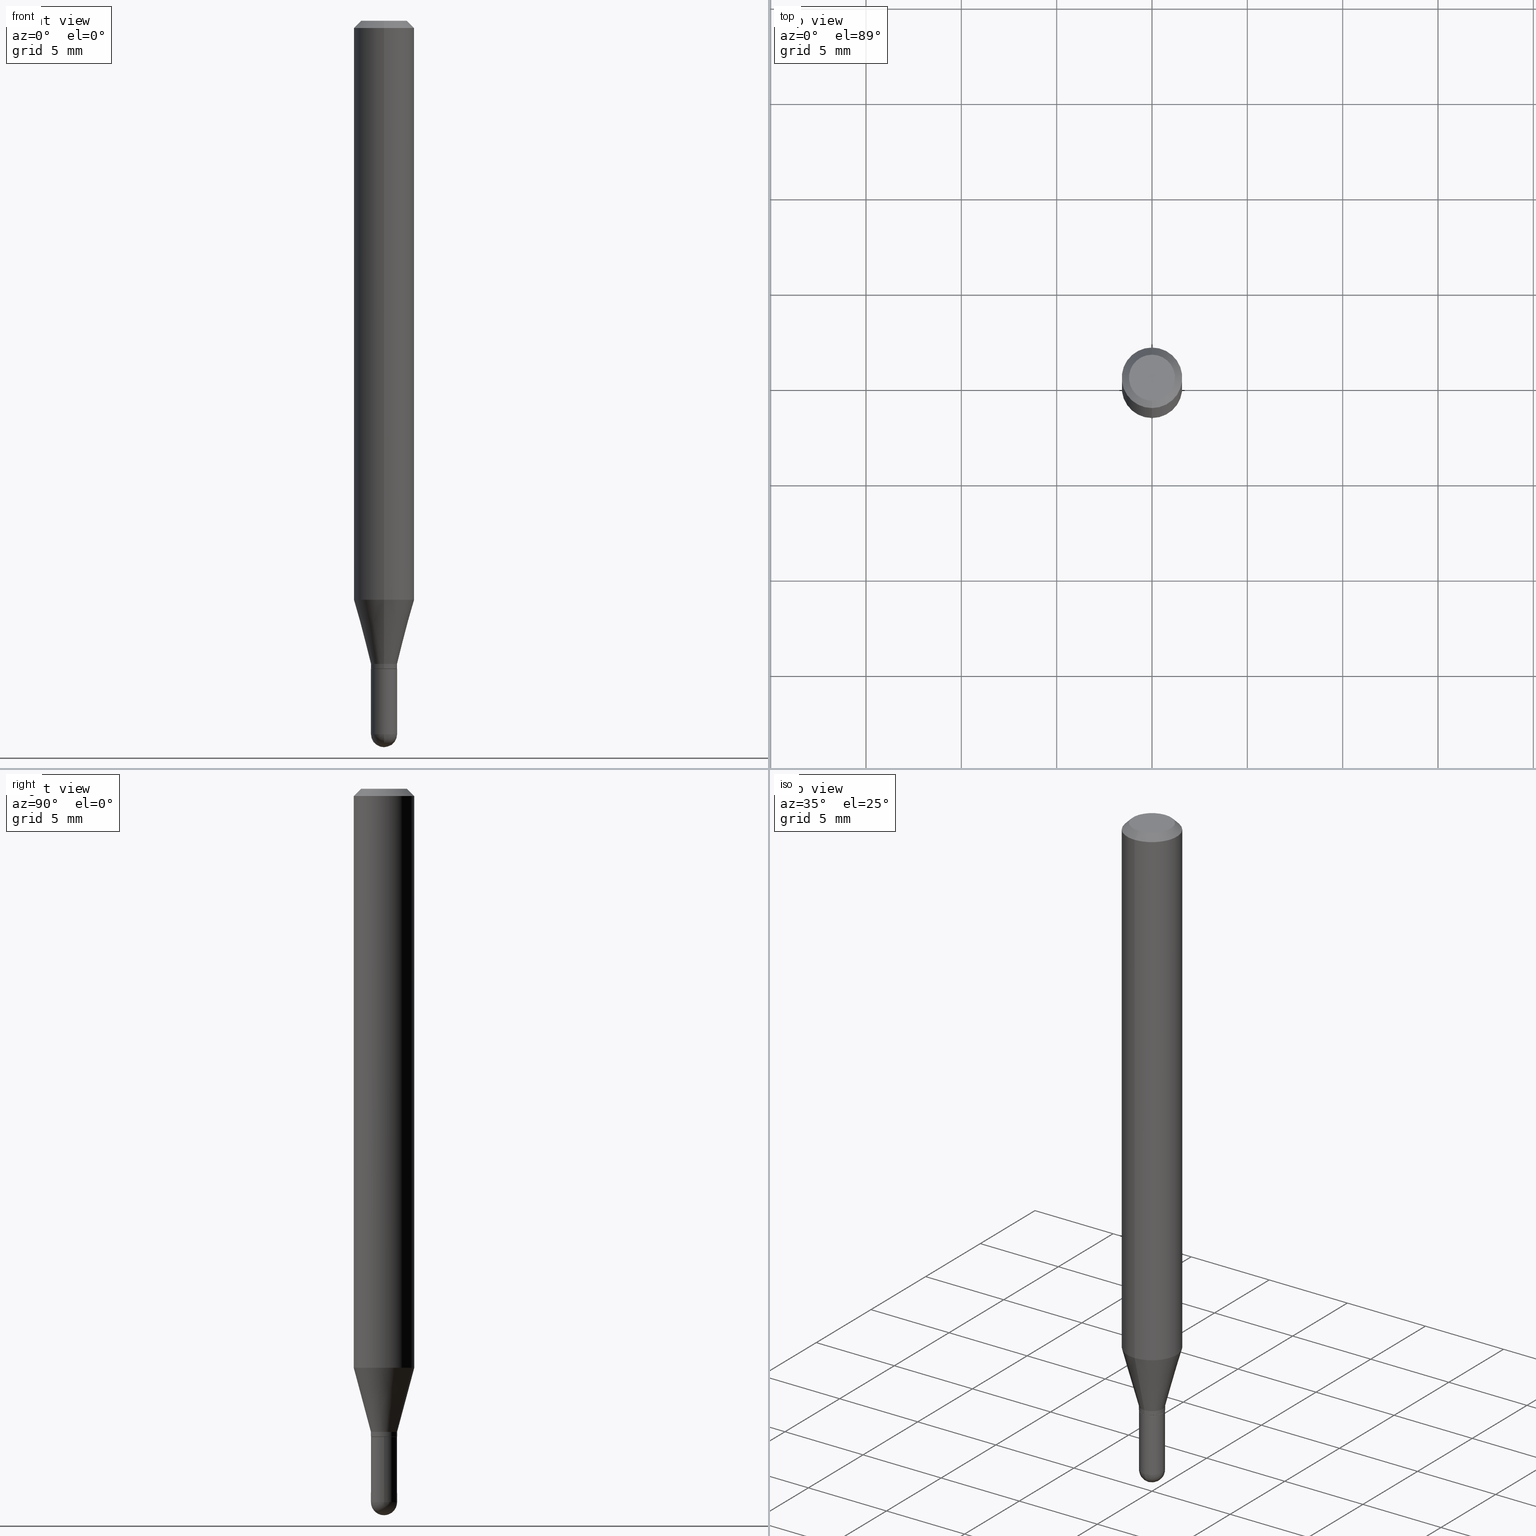
[diagram: canonical four-view strip — front | top / right | iso, engineering-drawing reading convention]
A machine part, canonical four-view strip (front | top / right | iso — engineering-drawing reading convention). The complete STEP part file that produces these views, byte-faithful:
ISO-10303-21;
HEADER;
FILE_DESCRIPTION (( 'STEP AP203' ),
    '1' );
FILE_NAME ('00931.STEP',
    '2024-03-07T18:59:54',
    ( '' ),
    ( '' ),
    'SwSTEP 2.0',
    'SolidWorks 2023',
    '' );
FILE_SCHEMA (( 'CONFIG_CONTROL_DESIGN' ));
ENDSEC;

DATA;
#1 = ORIENTED_EDGE ( 'NONE', *, *, #105, .F. ) ;
#2 = EDGE_CURVE ( 'NONE', #106, #34, #147, .T. ) ;
#3 = DIRECTION ( 'NONE',  ( -7.105427357601000281E-15, -1.000000000000000000, 0.000000000000000000 ) ) ;
#4 = CARTESIAN_POINT ( 'NONE',  ( 3.272025347313911771E-29, -4.671619094848407889E-15, -1.338000000000000078 ) ) ;
#5 = PLANE ( 'NONE',  #325 ) ;
#6 = VECTOR ( 'NONE', #388, 39.37007874015748143 ) ;
#7 = APPROVAL_PERSON_ORGANIZATION ( #179, #91, #22 ) ;
#8 = EDGE_LOOP ( 'NONE', ( #339, #29, #226, #201, #393 ) ) ;
#9 = EDGE_LOOP ( 'NONE', ( #151, #293 ) ) ;
#10 = DIRECTION ( 'NONE',  ( 1.000000000000000000, -6.982962677686261189E-15, 0.000000000000000000 ) ) ;
#11 = ORIENTED_EDGE ( 'NONE', *, *, #265, .F. ) ;
#12 = PRODUCT ( '00931', '00931', '', ( #220 ) ) ;
#13 = VECTOR ( 'NONE', #476, 39.37007874015748143 ) ;
#14 = AXIS2_PLACEMENT_3D ( 'NONE', #263, #421, #67 ) ;
#15 = LINE ( 'NONE', #443, #508 ) ;
#16 = CYLINDRICAL_SURFACE ( 'NONE', #197, 0.02700000000000000316 ) ;
#17 = CIRCLE ( 'NONE', #281, 0.06250000000000000000 ) ;
#18 = CIRCLE ( 'NONE', #271, 0.02649999999999999925 ) ;
#19 = LINE ( 'NONE', #255, #417 ) ;
#20 = EDGE_CURVE ( 'NONE', #231, #192, #435, .T. ) ;
#21 = CYLINDRICAL_SURFACE ( 'NONE', #342, 0.02699999999999992337 ) ;
#22 = APPROVAL_ROLE ( '' ) ;
#23 = VECTOR ( 'NONE', #219, 39.37007874015748143 ) ;
#24 = EDGE_CURVE ( 'NONE', #176, #200, #494, .T. ) ;
#25 = LOCAL_TIME ( 13, 59, 54.00000000000000000, #478 ) ;
#26 = CARTESIAN_POINT ( 'NONE',  ( 3.247570748305587129E-29, -4.636704153930258690E-15, -1.328000000000000069 ) ) ;
#27 = COORDINATED_UNIVERSAL_TIME_OFFSET ( 5, 0, .BEHIND. ) ;
#28 = CARTESIAN_POINT ( 'NONE',  ( 3.840629472727447874E-16, 0.04749999999999999362, -1.747056831868805136E-16 ) ) ;
#29 = ORIENTED_EDGE ( 'NONE', *, *, #81, .T. ) ;
#30 = DIRECTION ( 'NONE',  ( 2.445459900832520260E-29, -3.491494091814953500E-15, -1.000000000000000000 ) ) ;
#31 = EDGE_CURVE ( 'NONE', #185, #495, #222, .T. ) ;
#32 = VERTEX_POINT ( 'NONE', #506 ) ;
#33 = CARTESIAN_POINT ( 'NONE',  ( -1.885399922974961558E-16, -0.02700000000000455855, -1.328000000000000069 ) ) ;
#34 = VERTEX_POINT ( 'NONE', #190 ) ;
#35 = LINE ( 'NONE', #152, #23 ) ;
#36 = EDGE_CURVE ( 'NONE', #256, #410, #104, .T. ) ;
#37 = ORIENTED_EDGE ( 'NONE', *, *, #199, .T. ) ;
#38 = CARTESIAN_POINT ( 'NONE',  ( 3.270802617363496408E-29, -4.669873347802500627E-15, -1.337500000000000133 ) ) ;
#39 =( CONVERSION_BASED_UNIT ( 'INCH', #159 ) LENGTH_UNIT ( ) NAMED_UNIT ( #154 ) );
#40 = VERTEX_POINT ( 'NONE', #33 ) ;
#41 = DIRECTION ( 'NONE',  ( -6.982962677686265922E-15, -1.000000000000000000, 3.483106191921935554E-15 ) ) ;
#42 = DIRECTION ( 'NONE',  ( -6.982962677686265922E-15, -1.000000000000000000, 0.000000000000000000 ) ) ;
#43 = ORIENTED_EDGE ( 'NONE', *, *, #172, .F. ) ;
#44 = EDGE_CURVE ( 'NONE', #425, #231, #69, .T. ) ;
#45 = VERTEX_POINT ( 'NONE', #208 ) ;
#46 = LINE ( 'NONE', #276, #6 ) ;
#47 = EDGE_LOOP ( 'NONE', ( #223, #375, #295, #1 ) ) ;
#48 = EDGE_LOOP ( 'NONE', ( #238, #391, #99, #267 ) ) ;
#49 = DIRECTION ( 'NONE',  ( -6.982962677686265922E-15, -1.000000000000000000, 0.000000000000000000 ) ) ;
#50 = ADVANCED_FACE ( 'NONE', ( #58 ), #16, .T. ) ;
#51 = PERSON_AND_ORGANIZATION_ROLE ( 'creator' ) ;
#52 = CYLINDRICAL_SURFACE ( 'NONE', #95, 0.06250000000000000000 ) ;
#53 = AXIS2_PLACEMENT_3D ( 'NONE', #4, #456, #273 ) ;
#54 = EDGE_CURVE ( 'NONE', #40, #185, #260, .T. ) ;
#55 = LINE ( 'NONE', #207, #195 ) ;
#56 = CARTESIAN_POINT ( 'NONE',  ( 3.602175551510707068E-29, -5.142952012115954617E-15, -1.473000000000000309 ) ) ;
#57 = CARTESIAN_POINT ( 'NONE',  ( -1.850485109586532966E-16, -0.02650000000000466913, -1.338000000000000078 ) ) ;
#58 = FACE_OUTER_BOUND ( 'NONE', #8, .T. ) ;
#59 = EDGE_CURVE ( 'NONE', #34, #106, #382, .T. ) ;
#60 = CIRCLE ( 'NONE', #406, 0.02699999999999992337 ) ;
#61 = DIRECTION ( 'NONE',  ( -4.937700262164674260E-15, -0.7071067811865632269, 0.7071067811865319186 ) ) ;
#62 = ORIENTED_EDGE ( 'NONE', *, *, #472, .T. ) ;
#63 = LOCAL_TIME ( 13, 59, 54.00000000000000000, #327 ) ;
#64 = DIRECTION ( 'NONE',  ( -2.445459900832520260E-29, 3.491494091814953500E-15, 1.000000000000000000 ) ) ;
#65 = PERSON_AND_ORGANIZATION_ROLE ( 'creator' ) ;
#66 = EDGE_CURVE ( 'NONE', #425, #194, #213, .T. ) ;
#67 = DIRECTION ( 'NONE',  ( 1.000000000000000000, 0.000000000000000000, 0.000000000000000000 ) ) ;
#68 = PERSON_AND_ORGANIZATION ( #248, #245 ) ;
#69 = LINE ( 'NONE', #378, #225 ) ;
#70 = LINE ( 'NONE', #272, #209 ) ;
#71 = DIRECTION ( 'NONE',  ( -6.982962677686265922E-15, -1.000000000000000000, 0.000000000000000000 ) ) ;
#72 = APPROVAL ( #240, 'UNSPECIFIED' ) ;
#73 = ORIENTED_EDGE ( 'NONE', *, *, #234, .T. ) ;
#74 = EDGE_LOOP ( 'NONE', ( #384, #350, #275, #306, #140 ) ) ;
#75 = AXIS2_PLACEMENT_3D ( 'NONE', #250, #403, #289 ) ;
#76 = LOCAL_TIME ( 13, 59, 54.00000000000000000, #367 ) ;
#77 = CARTESIAN_POINT ( 'NONE',  ( 3.272025347313911771E-29, -4.671619094848407889E-15, -1.338000000000000078 ) ) ;
#78 = CARTESIAN_POINT ( 'NONE',  ( 3.270802617363496408E-29, -4.669873347802500627E-15, -1.337500000000000133 ) ) ;
#79 = CARTESIAN_POINT ( 'NONE',  ( 3.668189851248782579E-31, -5.237241137722432962E-17, -0.01500000000000000812 ) ) ;
#80 = CARTESIAN_POINT ( 'NONE',  ( 3.272025347313911771E-29, -4.671619094848407889E-15, -1.338000000000000078 ) ) ;
#81 = EDGE_CURVE ( 'NONE', #437, #106, #46, .T. ) ;
#82 = UNCERTAINTY_MEASURE_WITH_UNIT (LENGTH_MEASURE( 1.000000000000000082E-05 ), #39, 'distance_accuracy_value', 'NONE');
#83 = ORIENTED_EDGE ( 'NONE', *, *, #59, .T. ) ;
#84 = APPLICATION_CONTEXT ( 'configuration controlled 3d designs of mechanical parts and assemblies' ) ;
#85 = AXIS2_PLACEMENT_3D ( 'NONE', #365, #296, #299 ) ;
#86 = AXIS2_PLACEMENT_3D ( 'NONE', #210, #173, #126 ) ;
#87 = EDGE_LOOP ( 'NONE', ( #37, #454, #377, #351 ) ) ;
#88 = DESIGN_CONTEXT ( 'detailed design', #390, 'design' ) ;
#89 = LINE ( 'NONE', #446, #164 ) ;
#90 = PERSON_AND_ORGANIZATION ( #248, #245 ) ;
#91 = APPROVAL ( #505, 'UNSPECIFIED' ) ;
#92 = AXIS2_PLACEMENT_3D ( 'NONE', #337, #504, #144 ) ;
#93 = EDGE_CURVE ( 'NONE', #196, #34, #103, .T. ) ;
#94 = CYLINDRICAL_SURFACE ( 'NONE', #75, 0.02699999999999992337 ) ;
#95 = AXIS2_PLACEMENT_3D ( 'NONE', #247, #440, #286 ) ;
#96 = CONICAL_SURFACE ( 'NONE', #444, 0.02649999999999999925, 0.7853981633974739252 ) ;
#97 = ADVANCED_FACE ( 'NONE', ( #412 ), #416, .T. ) ;
#98 = DATE_AND_TIME ( #409, #121 ) ;
#99 = ORIENTED_EDGE ( 'NONE', *, *, #206, .T. ) ;
#100 = CARTESIAN_POINT ( 'NONE',  ( 3.668189851248782579E-31, -5.237241137722432962E-17, -0.01500000000000000812 ) ) ;
#101 = PERSON_AND_ORGANIZATION ( #248, #245 ) ;
#102 = CARTESIAN_POINT ( 'NONE',  ( 4.440892098500625669E-16, 0.06250000000000000000, -2.182183807384345937E-16 ) ) ;
#103 = LINE ( 'NONE', #433, #13 ) ;
#104 = CIRCLE ( 'NONE', #441, 0.04749999999999999362 ) ;
#105 = EDGE_CURVE ( 'NONE', #185, #40, #252, .T. ) ;
#106 = VERTEX_POINT ( 'NONE', #282 ) ;
#107 = CARTESIAN_POINT ( 'NONE',  ( 1.918465386552589476E-16, 0.02699999999999528819, -1.328000000000000069 ) ) ;
#108 = EDGE_CURVE ( 'NONE', #200, #437, #244, .T. ) ;
#109 = ORIENTED_EDGE ( 'NONE', *, *, #349, .T. ) ;
#110 = DIRECTION ( 'NONE',  ( -2.445459900832520260E-29, 3.491494091814953500E-15, 1.000000000000000000 ) ) ;
#111 = CARTESIAN_POINT ( 'NONE',  ( 0.000000000000000000, 0.000000000000000000, 0.000000000000000000 ) ) ;
#112 = DIRECTION ( 'NONE',  ( -2.445459900832520260E-29, 3.491494091814953500E-15, 1.000000000000000000 ) ) ;
#113 = PLANE ( 'NONE',  #392 ) ;
#114 = AXIS2_PLACEMENT_3D ( 'NONE', #80, #307, #266 ) ;
#115 = CARTESIAN_POINT ( 'NONE',  ( 3.272025347313911771E-29, -4.671619094848407889E-15, -1.338000000000000078 ) ) ;
#116 = EDGE_LOOP ( 'NONE', ( #109, #507, #499, #43 ) ) ;
#117 = DIRECTION ( 'NONE',  ( -2.445459900832520260E-29, 3.491494091814953500E-15, 1.000000000000000000 ) ) ;
#118 =( NAMED_UNIT ( * ) SI_UNIT ( $, .STERADIAN. ) SOLID_ANGLE_UNIT ( ) );
#119 = EDGE_CURVE ( 'NONE', #437, #32, #131, .T. ) ;
#120 = AXIS2_PLACEMENT_3D ( 'NONE', #321, #237, #49 ) ;
#121 = LOCAL_TIME ( 13, 59, 54.00000000000000000, #27 ) ;
#122 = ORIENTED_EDGE ( 'NONE', *, *, #160, .F. ) ;
#123 = DIRECTION ( 'NONE',  ( 1.000000000000000000, -6.982962677686259611E-15, 0.000000000000000000 ) ) ;
#124 = PERSON_AND_ORGANIZATION_ROLE ( 'design_owner' ) ;
#125 = DIRECTION ( 'NONE',  ( -2.445459900832520260E-29, 3.491494091814953500E-15, 1.000000000000000000 ) ) ;
#126 = DIRECTION ( 'NONE',  ( -6.982962677686265922E-15, -1.000000000000000000, 3.491494091814953500E-15 ) ) ;
#127 = CARTESIAN_POINT ( 'NONE',  ( 3.602175551510707068E-29, -5.142952012115954617E-15, -1.473000000000000309 ) ) ;
#128 = DIRECTION ( 'NONE',  ( -6.982962677686265922E-15, -1.000000000000000000, 0.000000000000000000 ) ) ;
#129 = DIRECTION ( 'NONE',  ( -2.445459900832520260E-29, 3.491494091814953500E-15, 1.000000000000000000 ) ) ;
#130 = CLOSED_SHELL ( 'NONE', ( #50, #334, #241, #413, #215 ) ) ;
#131 = CIRCLE ( 'NONE', #301, 0.02700000000000000316 ) ;
#132 = ADVANCED_FACE ( 'NONE', ( #203 ), #459, .T. ) ;
#133 = PRODUCT_DEFINITION_FORMATION_WITH_SPECIFIED_SOURCE ( 'ANY', '', #12, .NOT_KNOWN. ) ;
#134 = CARTESIAN_POINT ( 'NONE',  ( 3.599866602529921766E-29, -5.146258558473651564E-15, -1.473000000000000087 ) ) ;
#135 = APPROVAL_STATUS ( 'not_yet_approved' ) ;
#136 = APPROVAL_PERSON_ORGANIZATION ( #101, #438, #298 ) ;
#137 = ORIENTED_EDGE ( 'NONE', *, *, #146, .F. ) ;
#138 = DIRECTION ( 'NONE',  ( 1.000000000000000000, -6.982962677686267499E-15, 4.876176775795935232E-29 ) ) ;
#139 = ADVANCED_FACE ( 'NONE', ( #243 ), #52, .T. ) ;
#140 = ORIENTED_EDGE ( 'NONE', *, *, #2, .F. ) ;
#141 = CARTESIAN_POINT ( 'NONE',  ( 1.885399922975619024E-16, 0.02699999999999532982, -1.338000000000000078 ) ) ;
#142 = DATE_AND_TIME ( #498, #76 ) ;
#143 = ORIENTED_EDGE ( 'NONE', *, *, #44, .T. ) ;
#144 = DIRECTION ( 'NONE',  ( 6.982962677686265922E-15, 1.000000000000000000, 0.000000000000000000 ) ) ;
#145 = APPLICATION_PROTOCOL_DEFINITION ( 'international standard', 'config_control_design', 1994, #84 ) ;
#146 = EDGE_CURVE ( 'NONE', #40, #45, #89, .T. ) ;
#147 = CIRCLE ( 'NONE', #487, 0.02699999999999999969 ) ;
#148 = EDGE_LOOP ( 'NONE', ( #347, #424 ) ) ;
#149 = AXIS2_PLACEMENT_3D ( 'NONE', #100, #30, #228 ) ;
#150 = DIRECTION ( 'NONE',  ( -6.982962677686266711E-15, -1.000000000000000000, 3.491494091814954289E-15 ) ) ;
#151 = ORIENTED_EDGE ( 'NONE', *, *, #511, .F. ) ;
#152 = CARTESIAN_POINT ( 'NONE',  ( 1.918465386552264810E-16, 0.02699999999999992337, -9.427034047900348023E-17 ) ) ;
#153 = CARTESIAN_POINT ( 'NONE',  ( 3.316907271900976096E-16, 0.04749999999999999362, -1.702758262740453827E-16 ) ) ;
#154 = DIMENSIONAL_EXPONENTS ( 1.000000000000000000, 0.000000000000000000, 0.000000000000000000, 0.000000000000000000, 0.000000000000000000, 0.000000000000000000, 0.000000000000000000 ) ;
#155 = ORIENTED_EDGE ( 'NONE', *, *, #257, .F. ) ;
#156 = SPHERICAL_SURFACE ( 'NONE', #92, 0.02700000000000001357 ) ;
#157 = FACE_OUTER_BOUND ( 'NONE', #148, .T. ) ;
#158 = CIRCLE ( 'NONE', #311, 0.02700000000000001357 ) ;
#159 = LENGTH_MEASURE_WITH_UNIT ( LENGTH_MEASURE( 0.02539999999999999897 ), #229 );
#160 = EDGE_CURVE ( 'NONE', #32, #196, #448, .T. ) ;
#161 = ORIENTED_EDGE ( 'NONE', *, *, #24, .T. ) ;
#162 = EDGE_CURVE ( 'NONE', #410, #474, #55, .T. ) ;
#163 = DIRECTION ( 'NONE',  ( 1.000000000000000000, -6.982962677686259611E-15, 0.000000000000000000 ) ) ;
#164 = VECTOR ( 'NONE', #400, 39.37007874015748854 ) ;
#165 = AXIS2_PLACEMENT_3D ( 'NONE', #418, #202, #509 ) ;
#166 = DIRECTION ( 'NONE',  ( -2.445459900832520260E-29, 3.491494091814953500E-15, 1.000000000000000000 ) ) ;
#167 = EDGE_CURVE ( 'NONE', #45, #474, #361, .T. ) ;
#168 = VECTOR ( 'NONE', #264, 39.37007874015748854 ) ;
#169 = APPROVAL_PERSON_ORGANIZATION ( #90, #72, #473 ) ;
#170 = DIRECTION ( 'NONE',  ( -2.445468806185136597E-29, 3.491481338843145583E-15, 1.000000000000000000 ) ) ;
#171 = ADVANCED_BREP_SHAPE_REPRESENTATION ( '00931', ( #492, #484, #14 ), #214 ) ;
#172 = EDGE_CURVE ( 'NONE', #192, #40, #15, .T. ) ;
#173 = DIRECTION ( 'NONE',  ( -2.445459900832519979E-29, 3.491494091814953500E-15, 1.000000000000000000 ) ) ;
#174 = DATE_AND_TIME ( #288, #25 ) ;
#175 = DIRECTION ( 'NONE',  ( -2.445459900832520260E-29, 3.491494091814953500E-15, 1.000000000000000000 ) ) ;
#176 = VERTEX_POINT ( 'NONE', #317 ) ;
#177 = PRODUCT_DEFINITION ( 'UNKNOWN', '', #133, #88 ) ;
#178 = FACE_OUTER_BOUND ( 'NONE', #74, .T. ) ;
#179 = PERSON_AND_ORGANIZATION ( #248, #245 ) ;
#180 = AXIS2_PLACEMENT_3D ( 'NONE', #333, #129, #366 ) ;
#181 = EDGE_LOOP ( 'NONE', ( #155, #198, #336, #387 ) ) ;
#182 = ADVANCED_FACE ( 'NONE', ( #284 ), #94, .T. ) ;
#183 = DIRECTION ( 'NONE',  ( -2.445459900832520260E-29, 3.491494091814953500E-15, 1.000000000000000000 ) ) ;
#184 = DATE_TIME_ROLE ( 'creation_date' ) ;
#185 = VERTEX_POINT ( 'NONE', #452 ) ;
#186 = CC_DESIGN_PERSON_AND_ORGANIZATION_ASSIGNMENT ( #364, #65, ( #133 ) ) ;
#187 = DATE_AND_TIME ( #372, #291 ) ;
#188 = EDGE_LOOP ( 'NONE', ( #373, #280, #313, #62 ) ) ;
#189 = DIRECTION ( 'NONE',  ( -1.000000000000000000, 6.982962677686265922E-15, -4.876176775795935793E-29 ) ) ;
#190 = CARTESIAN_POINT ( 'NONE',  ( 0.02699999999999999969, -4.860142023669657629E-15, -1.338000000000000078 ) ) ;
#191 = DIRECTION ( 'NONE',  ( 2.445459900832519979E-29, -3.491494091814953500E-15, -1.000000000000000000 ) ) ;
#192 = VERTEX_POINT ( 'NONE', #405 ) ;
#193 = DIRECTION ( 'NONE',  ( -2.445459900832520260E-29, 3.491494091814953500E-15, 1.000000000000000000 ) ) ;
#194 = VERTEX_POINT ( 'NONE', #57 ) ;
#195 = VECTOR ( 'NONE', #323, 39.37007874015748143 ) ;
#196 = VERTEX_POINT ( 'NONE', #362 ) ;
#197 = AXIS2_PLACEMENT_3D ( 'NONE', #363, #170, #477 ) ;
#198 = ORIENTED_EDGE ( 'NONE', *, *, #322, .T. ) ;
#199 = EDGE_CURVE ( 'NONE', #45, #495, #354, .T. ) ;
#200 = VERTEX_POINT ( 'NONE', #411 ) ;
#201 = ORIENTED_EDGE ( 'NONE', *, *, #93, .F. ) ;
#202 = DIRECTION ( 'NONE',  ( -2.445468806185136597E-29, 3.491481338843145583E-15, 1.000000000000000000 ) ) ;
#203 = FACE_OUTER_BOUND ( 'NONE', #426, .T. ) ;
#204 = CIRCLE ( 'NONE', #469, 0.06250000000000000000 ) ;
#205 = DIRECTION ( 'NONE',  ( -6.982962677686265922E-15, -1.000000000000000000, 0.000000000000000000 ) ) ;
#206 = EDGE_CURVE ( 'NONE', #194, #192, #19, .T. ) ;
#207 = CARTESIAN_POINT ( 'NONE',  ( -4.287811248607203282E-16, -0.06250000000000005551, -0.01499999999999979128 ) ) ;
#208 = CARTESIAN_POINT ( 'NONE',  ( -4.364351673553625802E-16, -0.06250000000000419109, -1.195512196331305121 ) ) ;
#209 = VECTOR ( 'NONE', #380, 39.37007874015748143 ) ;
#210 = CARTESIAN_POINT ( 'NONE',  ( 3.272025347313911771E-29, -4.671619094848407889E-15, -1.338000000000000078 ) ) ;
#211 = ORIENTED_EDGE ( 'NONE', *, *, #54, .T. ) ;
#212 = CARTESIAN_POINT ( 'NONE',  ( 0.000000000000000000, 0.000000000000000000, 0.000000000000000000 ) ) ;
#213 = CIRCLE ( 'NONE', #53, 0.02649999999999999925 ) ;
#214 =( GEOMETRIC_REPRESENTATION_CONTEXT ( 3 ) GLOBAL_UNCERTAINTY_ASSIGNED_CONTEXT ( ( #82 ) ) GLOBAL_UNIT_ASSIGNED_CONTEXT ( ( #39, #345, #118 ) ) REPRESENTATION_CONTEXT ( 'NONE', 'WORKASPACE' ) );
#215 = ADVANCED_FACE ( 'NONE', ( #178 ), #329, .T. ) ;
#216 = EDGE_LOOP ( 'NONE', ( #211, #235, #414, #137 ) ) ;
#217 = CARTESIAN_POINT ( 'NONE',  ( 2.923577137084422367E-29, -4.174123770183471873E-15, -1.195512196331305343 ) ) ;
#218 = CALENDAR_DATE ( 2024, 7, 3 ) ;
#219 = DIRECTION ( 'NONE',  ( -2.445459900832520260E-29, 3.491494091814953500E-15, 1.000000000000000000 ) ) ;
#220 = MECHANICAL_CONTEXT ( 'NONE', #84, 'mechanical' ) ;
#221 = ORIENTED_EDGE ( 'NONE', *, *, #31, .F. ) ;
#222 = LINE ( 'NONE', #107, #168 ) ;
#223 = ORIENTED_EDGE ( 'NONE', *, *, #305, .F. ) ;
#224 = DIRECTION ( 'NONE',  ( -2.445459900832520260E-29, 3.491494091814953500E-15, 1.000000000000000000 ) ) ;
#225 = VECTOR ( 'NONE', #358, 39.37007874015748143 ) ;
#226 = ORIENTED_EDGE ( 'NONE', *, *, #59, .F. ) ;
#227 = CARTESIAN_POINT ( 'NONE',  ( 3.668189851248782579E-31, -5.237241137722432962E-17, -0.01500000000000000812 ) ) ;
#228 = DIRECTION ( 'NONE',  ( 6.982962677686265922E-15, 1.000000000000000000, -3.483106191921935554E-15 ) ) ;
#229 =( LENGTH_UNIT ( ) NAMED_UNIT ( * ) SI_UNIT ( $, .METRE. ) );
#230 = ADVANCED_FACE ( 'NONE', ( #294 ), #330, .T. ) ;
#231 = VERTEX_POINT ( 'NONE', #500 ) ;
#232 = CLOSED_SHELL ( 'NONE', ( #182, #486, #230, #139, #97, #132, #353, #468, #463, #419, #458, #360 ) ) ;
#233 = VECTOR ( 'NONE', #110, 39.37007874015748143 ) ;
#234 = EDGE_CURVE ( 'NONE', #474, #461, #204, .T. ) ;
#235 = ORIENTED_EDGE ( 'NONE', *, *, #31, .T. ) ;
#236 = FACE_OUTER_BOUND ( 'NONE', #181, .T. ) ;
#237 = DIRECTION ( 'NONE',  ( -2.445459900832520260E-29, 3.491494091814953500E-15, 1.000000000000000000 ) ) ;
#238 = ORIENTED_EDGE ( 'NONE', *, *, #44, .F. ) ;
#239 = DIRECTION ( 'NONE',  ( -2.445468806185136597E-29, 3.491481338843145583E-15, 1.000000000000000000 ) ) ;
#240 = APPROVAL_STATUS ( 'not_yet_approved' ) ;
#241 = ADVANCED_FACE ( 'NONE', ( #415 ), #113, .F. ) ;
#242 = COORDINATED_UNIVERSAL_TIME_OFFSET ( 5, 0, .BEHIND. ) ;
#243 = FACE_OUTER_BOUND ( 'NONE', #87, .T. ) ;
#244 = CIRCLE ( 'NONE', #341, 0.02700000000000000316 ) ;
#245 = ORGANIZATION ( 'UNSPECIFIED', 'UNSPECIFIED', '' ) ;
#246 = CC_DESIGN_PERSON_AND_ORGANIZATION_ASSIGNMENT ( #68, #338, ( #133 ) ) ;
#247 = CARTESIAN_POINT ( 'NONE',  ( 0.000000000000000000, 0.000000000000000000, 0.000000000000000000 ) ) ;
#248 = PERSON ( 'UNSPECIFIED', 'UNSPECIFIED', 'UNSPECIFIED', ('UNSPECIFIED'), ('UNSPECIFIED'), ('UNSPECIFIED') ) ;
#249 = CARTESIAN_POINT ( 'NONE',  ( -3.773273898774340269E-16, -0.04749999999999999362, 1.569862555355400639E-16 ) ) ;
#250 = CARTESIAN_POINT ( 'NONE',  ( 0.000000000000000000, 0.000000000000000000, 0.000000000000000000 ) ) ;
#251 = CC_DESIGN_PERSON_AND_ORGANIZATION_ASSIGNMENT ( #502, #332, ( #460 ) ) ;
#252 = CIRCLE ( 'NONE', #324, 0.02699999999999992337 ) ;
#253 = AXIS2_PLACEMENT_3D ( 'NONE', #134, #483, #287 ) ;
#254 = DIRECTION ( 'NONE',  ( -6.982962677686265922E-15, -1.000000000000000000, 0.000000000000000000 ) ) ;
#255 = CARTESIAN_POINT ( 'NONE',  ( -1.850485109586532966E-16, -0.02650000000000466913, -1.338000000000000078 ) ) ;
#256 = VERTEX_POINT ( 'NONE', #28 ) ;
#257 = EDGE_CURVE ( 'NONE', #495, #461, #455, .T. ) ;
#258 = AXIS2_PLACEMENT_3D ( 'NONE', #78, #125, #254 ) ;
#259 = CARTESIAN_POINT ( 'NONE',  ( 3.247570748305587129E-29, -4.636704153930258690E-15, -1.328000000000000069 ) ) ;
#260 = CIRCLE ( 'NONE', #120, 0.02699999999999992337 ) ;
#261 = ORIENTED_EDGE ( 'NONE', *, *, #450, .F. ) ;
#262 = APPROVAL_DATE_TIME ( #174, #72 ) ;
#263 = CARTESIAN_POINT ( 'NONE',  ( 0.000000000000000000, 0.000000000000000000, 0.000000000000000000 ) ) ;
#264 = DIRECTION ( 'NONE',  ( 1.839019923739603471E-15, 0.2588190451025254024, 0.9659258262890669799 ) ) ;
#265 = EDGE_CURVE ( 'NONE', #256, #461, #70, .T. ) ;
#266 = DIRECTION ( 'NONE',  ( -6.982962677686265922E-15, -1.000000000000000000, 0.000000000000000000 ) ) ;
#267 = ORIENTED_EDGE ( 'NONE', *, *, #20, .F. ) ;
#268 = DIRECTION ( 'NONE',  ( -6.982962677686266711E-15, -1.000000000000000000, 3.491494091814954289E-15 ) ) ;
#269 = CC_DESIGN_PERSON_AND_ORGANIZATION_ASSIGNMENT ( #352, #124, ( #12 ) ) ;
#270 = AXIS2_PLACEMENT_3D ( 'NONE', #359, #402, #128 ) ;
#271 = AXIS2_PLACEMENT_3D ( 'NONE', #115, #427, #42 ) ;
#272 = CARTESIAN_POINT ( 'NONE',  ( 4.364351673553919652E-16, 0.06249999999999995143, -0.01500000000000022669 ) ) ;
#273 = DIRECTION ( 'NONE',  ( -6.982962677686265922E-15, -1.000000000000000000, 0.000000000000000000 ) ) ;
#274 = DIRECTION ( 'NONE',  ( -2.445459900832520260E-29, 3.491494091814953500E-15, 1.000000000000000000 ) ) ;
#275 = ORIENTED_EDGE ( 'NONE', *, *, #160, .T. ) ;
#276 = CARTESIAN_POINT ( 'NONE',  ( -0.02700000000000000316, 1.918465386552270727E-16, -1.328112474368824641E-30 ) ) ;
#277 = FACE_OUTER_BOUND ( 'NONE', #48, .T. ) ;
#278 = CC_DESIGN_PERSON_AND_ORGANIZATION_ASSIGNMENT ( #491, #51, ( #177 ) ) ;
#279 = CARTESIAN_POINT ( 'NONE',  ( 1.900701818158592132E-16, 0.02649999999999532938, -1.338000000000000078 ) ) ;
#280 = ORIENTED_EDGE ( 'NONE', *, *, #36, .F. ) ;
#281 = AXIS2_PLACEMENT_3D ( 'NONE', #217, #193, #432 ) ;
#282 = CARTESIAN_POINT ( 'NONE',  ( -0.02699999999999999969, -4.715430483088814160E-15, -1.338000000000000078 ) ) ;
#283 = APPLICATION_PROTOCOL_DEFINITION ( 'international standard', 'config_control_design', 1994, #390 ) ;
#284 = FACE_OUTER_BOUND ( 'NONE', #116, .T. ) ;
#285 = AXIS2_PLACEMENT_3D ( 'NONE', #26, #183, #501 ) ;
#286 = DIRECTION ( 'NONE',  ( -6.982962677686265922E-15, -1.000000000000000000, 3.491494091814953500E-15 ) ) ;
#287 = DIRECTION ( 'NONE',  ( 6.982962677686265922E-15, 1.000000000000000000, 0.000000000000000000 ) ) ;
#288 = CALENDAR_DATE ( 2024, 7, 3 ) ;
#289 = DIRECTION ( 'NONE',  ( -6.982962677686265922E-15, -1.000000000000000000, 3.491494091814953500E-15 ) ) ;
#290 = VECTOR ( 'NONE', #489, 39.37007874015748143 ) ;
#291 = LOCAL_TIME ( 13, 59, 54.00000000000000000, #242 ) ;
#292 = SHAPE_DEFINITION_REPRESENTATION ( #439, #171 ) ;
#293 = ORIENTED_EDGE ( 'NONE', *, *, #66, .F. ) ;
#294 = FACE_OUTER_BOUND ( 'NONE', #434, .T. ) ;
#295 = ORIENTED_EDGE ( 'NONE', *, *, #172, .T. ) ;
#296 = DIRECTION ( 'NONE',  ( 1.000000000000000000, -6.982962677686265922E-15, 4.883557194083112340E-29 ) ) ;
#297 = ORIENTED_EDGE ( 'NONE', *, *, #146, .T. ) ;
#298 = APPROVAL_ROLE ( '' ) ;
#299 = DIRECTION ( 'NONE',  ( 6.982962677686265133E-15, 1.000000000000000000, 0.000000000000000000 ) ) ;
#300 = DIRECTION ( 'NONE',  ( -6.982962677686265922E-15, -1.000000000000000000, 3.483106191921935554E-15 ) ) ;
#301 = AXIS2_PLACEMENT_3D ( 'NONE', #127, #315, #123 ) ;
#302 = CARTESIAN_POINT ( 'NONE',  ( 2.166607489352802238E-46, -3.093363847749885261E-32, -8.859713825670226397E-18 ) ) ;
#303 = ORIENTED_EDGE ( 'NONE', *, *, #322, .F. ) ;
#304 = FACE_OUTER_BOUND ( 'NONE', #346, .T. ) ;
#305 = EDGE_CURVE ( 'NONE', #231, #185, #35, .T. ) ;
#306 = ORIENTED_EDGE ( 'NONE', *, *, #93, .T. ) ;
#307 = DIRECTION ( 'NONE',  ( -2.445459900832520260E-29, 3.491494091814953500E-15, 1.000000000000000000 ) ) ;
#308 = CARTESIAN_POINT ( 'NONE',  ( 3.272037262675712888E-29, -4.671602031372128143E-15, -1.338000000000000078 ) ) ;
#309 = DIRECTION ( 'NONE',  ( -2.445459900832520260E-29, 3.491494091814953500E-15, 1.000000000000000000 ) ) ;
#310 = CARTESIAN_POINT ( 'NONE',  ( 4.440892098500915082E-16, 0.06249999999999580197, -1.195512196331305788 ) ) ;
#311 = AXIS2_PLACEMENT_3D ( 'NONE', #420, #376, #3 ) ;
#312 = CC_DESIGN_SECURITY_CLASSIFICATION ( #460, ( #133 ) ) ;
#313 = ORIENTED_EDGE ( 'NONE', *, *, #265, .T. ) ;
#314 = ORIENTED_EDGE ( 'NONE', *, *, #2, .T. ) ;
#315 = DIRECTION ( 'NONE',  ( -2.445468806185136597E-29, 3.491481338843145583E-15, 1.000000000000000000 ) ) ;
#316 = CONICAL_SURFACE ( 'NONE', #383, 0.06250000000000000000, 0.7853981633974483900 ) ;
#317 = CARTESIAN_POINT ( 'NONE',  ( 3.667048734787313365E-29, -5.238875281443567833E-15, -1.500000000000000222 ) ) ;
#318 = EDGE_CURVE ( 'NONE', #176, #32, #158, .T. ) ;
#319 = CARTESIAN_POINT ( 'NONE',  ( 3.272037262675712888E-29, -4.671602031372128143E-15, -1.338000000000000078 ) ) ;
#320 = CARTESIAN_POINT ( 'NONE',  ( 3.602175551510707068E-29, -5.142952012115954617E-15, -1.473000000000000309 ) ) ;
#321 = CARTESIAN_POINT ( 'NONE',  ( 3.247570748305587129E-29, -4.636704153930258690E-15, -1.328000000000000069 ) ) ;
#322 = EDGE_CURVE ( 'NONE', #495, #45, #17, .T. ) ;
#323 = DIRECTION ( 'NONE',  ( -4.851104656540964275E-15, -0.7071067811865500152, -0.7071067811865450192 ) ) ;
#324 = AXIS2_PLACEMENT_3D ( 'NONE', #259, #64, #205 ) ;
#325 = AXIS2_PLACEMENT_3D ( 'NONE', #153, #191, #348 ) ;
#326 = FACE_OUTER_BOUND ( 'NONE', #9, .T. ) ;
#327 = COORDINATED_UNIVERSAL_TIME_OFFSET ( 5, 0, .BEHIND. ) ;
#328 = ORIENTED_EDGE ( 'NONE', *, *, #119, .F. ) ;
#329 = CYLINDRICAL_SURFACE ( 'NONE', #436, 0.02700000000000000316 ) ;
#330 = CONICAL_SURFACE ( 'NONE', #149, 0.06250000000000000000, 0.7853981633974483900 ) ;
#331 = AXIS2_PLACEMENT_3D ( 'NONE', #464, #112, #268 ) ;
#332 = PERSON_AND_ORGANIZATION_ROLE ( 'classification_officer' ) ;
#333 = CARTESIAN_POINT ( 'NONE',  ( 2.923577137084422367E-29, -4.174123770183471873E-15, -1.195512196331305343 ) ) ;
#334 = ADVANCED_FACE ( 'NONE', ( #374 ), #156, .T. ) ;
#335 = APPROVAL_DATE_TIME ( #98, #91 ) ;
#336 = ORIENTED_EDGE ( 'NONE', *, *, #167, .T. ) ;
#337 = CARTESIAN_POINT ( 'NONE',  ( 3.599866602529921766E-29, -5.146258558473651564E-15, -1.473000000000000087 ) ) ;
#338 = PERSON_AND_ORGANIZATION_ROLE ( 'design_supplier' ) ;
#339 = ORIENTED_EDGE ( 'NONE', *, *, #108, .T. ) ;
#340 = FACE_OUTER_BOUND ( 'NONE', #188, .T. ) ;
#341 = AXIS2_PLACEMENT_3D ( 'NONE', #320, #485, #163 ) ;
#342 = AXIS2_PLACEMENT_3D ( 'NONE', #404, #175, #442 ) ;
#343 = DIRECTION ( 'NONE',  ( 6.982962677686265922E-15, 1.000000000000000000, -3.483106191921935554E-15 ) ) ;
#344 = ORIENTED_EDGE ( 'NONE', *, *, #105, .T. ) ;
#345 =( NAMED_UNIT ( * ) PLANE_ANGLE_UNIT ( ) SI_UNIT ( $, .RADIAN. ) );
#346 = EDGE_LOOP ( 'NONE', ( #368, #143, #397, #396 ) ) ;
#347 = ORIENTED_EDGE ( 'NONE', *, *, #36, .T. ) ;
#348 = DIRECTION ( 'NONE',  ( 6.982962677686265922E-15, 1.000000000000000000, -3.491494091814953500E-15 ) ) ;
#349 = EDGE_CURVE ( 'NONE', #192, #231, #60, .T. ) ;
#350 = ORIENTED_EDGE ( 'NONE', *, *, #119, .T. ) ;
#351 = ORIENTED_EDGE ( 'NONE', *, *, #167, .F. ) ;
#352 = PERSON_AND_ORGANIZATION ( #248, #245 ) ;
#353 = ADVANCED_FACE ( 'NONE', ( #236 ), #481, .T. ) ;
#354 = CIRCLE ( 'NONE', #180, 0.06250000000000000000 ) ;
#355 = CARTESIAN_POINT ( 'NONE',  ( -4.364351673553916201E-16, -0.06250000000000000000, 2.182183807384345937E-16 ) ) ;
#356 = CONICAL_SURFACE ( 'NONE', #114, 0.02649999999999999925, 0.7853981633974739252 ) ;
#357 = FACE_OUTER_BOUND ( 'NONE', #47, .T. ) ;
#358 = DIRECTION ( 'NONE',  ( 5.024295867788190974E-15, 0.7071067811865681119, 0.7071067811865270336 ) ) ;
#359 = CARTESIAN_POINT ( 'NONE',  ( 3.247570748305587129E-29, -4.636704153930258690E-15, -1.328000000000000069 ) ) ;
#360 = ADVANCED_FACE ( 'NONE', ( #357 ), #21, .T. ) ;
#361 = LINE ( 'NONE', #355, #290 ) ;
#362 = CARTESIAN_POINT ( 'NONE',  ( 0.02700000000000000316, -5.095817014041570866E-15, -1.473000000000000309 ) ) ;
#363 = CARTESIAN_POINT ( 'NONE',  ( 0.000000000000000000, 0.000000000000000000, 0.000000000000000000 ) ) ;
#364 = PERSON_AND_ORGANIZATION ( #248, #245 ) ;
#365 = CARTESIAN_POINT ( 'NONE',  ( 3.599866602529921766E-29, -5.146258558473651564E-15, -1.473000000000000087 ) ) ;
#366 = DIRECTION ( 'NONE',  ( -6.982962677686265922E-15, -1.000000000000000000, 4.370956789862821150E-15 ) ) ;
#367 = COORDINATED_UNIVERSAL_TIME_OFFSET ( 5, 0, .BEHIND. ) ;
#368 = ORIENTED_EDGE ( 'NONE', *, *, #511, .T. ) ;
#369 = PRODUCT_RELATED_PRODUCT_CATEGORY ( 'detail', '', ( #12 ) ) ;
#370 = EDGE_LOOP ( 'NONE', ( #83, #314 ) ) ;
#371 = CC_DESIGN_APPROVAL ( #91, ( #133 ) ) ;
#372 = CALENDAR_DATE ( 2024, 7, 3 ) ;
#373 = ORIENTED_EDGE ( 'NONE', *, *, #162, .F. ) ;
#374 = FACE_OUTER_BOUND ( 'NONE', #510, .T. ) ;
#375 = ORIENTED_EDGE ( 'NONE', *, *, #20, .T. ) ;
#376 = DIRECTION ( 'NONE',  ( -1.000000000000000000, 7.105427357601001070E-15, -4.926315508542082329E-29 ) ) ;
#377 = ORIENTED_EDGE ( 'NONE', *, *, #234, .F. ) ;
#378 = CARTESIAN_POINT ( 'NONE',  ( 1.882938249764592324E-16, 0.02649999999999532938, -1.338000000000000078 ) ) ;
#379 = ORIENTED_EDGE ( 'NONE', *, *, #318, .T. ) ;
#380 = DIRECTION ( 'NONE',  ( 4.937700262164548042E-15, 0.7071067811865451302, -0.7071067811865499042 ) ) ;
#381 = DIRECTION ( 'NONE',  ( 2.445459900832520260E-29, -3.491494091814953500E-15, -1.000000000000000000 ) ) ;
#382 = CIRCLE ( 'NONE', #479, 0.02699999999999999969 ) ;
#383 = AXIS2_PLACEMENT_3D ( 'NONE', #227, #381, #343 ) ;
#384 = ORIENTED_EDGE ( 'NONE', *, *, #81, .F. ) ;
#385 = ORIENTED_EDGE ( 'NONE', *, *, #24, .F. ) ;
#386 = DIRECTION ( 'NONE',  ( -2.445459900832520260E-29, 3.491494091814953500E-15, 1.000000000000000000 ) ) ;
#387 = ORIENTED_EDGE ( 'NONE', *, *, #472, .F. ) ;
#388 = DIRECTION ( 'NONE',  ( -2.445468806185136877E-29, 3.491481338843145188E-15, 1.000000000000000000 ) ) ;
#389 = CARTESIAN_POINT ( 'NONE',  ( -4.364351673553912750E-16, -0.06250000000000005551, -0.01499999999999979128 ) ) ;
#390 = APPLICATION_CONTEXT ( 'configuration controlled 3d designs of mechanical parts and assemblies' ) ;
#391 = ORIENTED_EDGE ( 'NONE', *, *, #66, .T. ) ;
#392 = AXIS2_PLACEMENT_3D ( 'NONE', #141, #462, #189 ) ;
#393 = ORIENTED_EDGE ( 'NONE', *, *, #450, .T. ) ;
#394 = CC_DESIGN_APPROVAL ( #72, ( #177 ) ) ;
#395 = DIRECTION ( 'NONE',  ( -2.445468806185136597E-29, 3.491481338843145583E-15, 1.000000000000000000 ) ) ;
#396 = ORIENTED_EDGE ( 'NONE', *, *, #206, .F. ) ;
#397 = ORIENTED_EDGE ( 'NONE', *, *, #349, .F. ) ;
#398 = CC_DESIGN_DATE_AND_TIME_ASSIGNMENT ( #142, #453, ( #460 ) ) ;
#399 = DIRECTION ( 'NONE',  ( 1.000000000000000000, -6.982962677686259611E-15, 0.000000000000000000 ) ) ;
#400 = DIRECTION ( 'NONE',  ( -1.807323732225333295E-15, -0.2588190451025186301, 0.9659258262890687563 ) ) ;
#401 = SPHERICAL_SURFACE ( 'NONE', #253, 0.02700000000000001357 ) ;
#402 = DIRECTION ( 'NONE',  ( -2.445459900832520260E-29, 3.491494091814953500E-15, 1.000000000000000000 ) ) ;
#403 = DIRECTION ( 'NONE',  ( -2.445459900832520260E-29, 3.491494091814953500E-15, 1.000000000000000000 ) ) ;
#404 = CARTESIAN_POINT ( 'NONE',  ( 0.000000000000000000, 0.000000000000000000, 0.000000000000000000 ) ) ;
#405 = CARTESIAN_POINT ( 'NONE',  ( -1.885399922974965502E-16, -0.02700000000000468345, -1.337500000000000133 ) ) ;
#406 = AXIS2_PLACEMENT_3D ( 'NONE', #38, #309, #466 ) ;
#407 = DATE_AND_TIME ( #218, #63 ) ;
#408 = CARTESIAN_POINT ( 'NONE',  ( -0.02700000000000000316, -4.715430483088814160E-15, -1.473000000000000309 ) ) ;
#409 = CALENDAR_DATE ( 2024, 7, 3 ) ;
#410 = VERTEX_POINT ( 'NONE', #249 ) ;
#411 = CARTESIAN_POINT ( 'NONE',  ( 1.885399922975652551E-16, 0.02699999999999486491, -1.473000000000000309 ) ) ;
#412 = FACE_OUTER_BOUND ( 'NONE', #216, .T. ) ;
#413 = ADVANCED_FACE ( 'NONE', ( #488 ), #401, .T. ) ;
#414 = ORIENTED_EDGE ( 'NONE', *, *, #199, .F. ) ;
#415 = FACE_OUTER_BOUND ( 'NONE', #370, .T. ) ;
#416 = CONICAL_SURFACE ( 'NONE', #285, 0.02699999999999992337, 0.2617993877991507956 ) ;
#417 = VECTOR ( 'NONE', #61, 39.37007874015748143 ) ;
#418 = CARTESIAN_POINT ( 'NONE',  ( 3.602175551510707068E-29, -5.142952012115954617E-15, -1.473000000000000309 ) ) ;
#419 = ADVANCED_FACE ( 'NONE', ( #326 ), #447, .F. ) ;
#420 = CARTESIAN_POINT ( 'NONE',  ( 3.599866602529921766E-29, -5.146258558473651564E-15, -1.473000000000000087 ) ) ;
#421 = DIRECTION ( 'NONE',  ( 0.000000000000000000, 0.000000000000000000, 1.000000000000000000 ) ) ;
#422 = SECURITY_CLASSIFICATION_LEVEL ( 'unclassified' ) ;
#423 = DIRECTION ( 'NONE',  ( -2.445459900832520260E-29, 3.491494091814953500E-15, 1.000000000000000000 ) ) ;
#424 = ORIENTED_EDGE ( 'NONE', *, *, #493, .T. ) ;
#425 = VERTEX_POINT ( 'NONE', #279 ) ;
#426 = EDGE_LOOP ( 'NONE', ( #221, #344, #297, #303 ) ) ;
#427 = DIRECTION ( 'NONE',  ( -2.445459900832520260E-29, 3.491494091814953500E-15, 1.000000000000000000 ) ) ;
#428 = AXIS2_PLACEMENT_3D ( 'NONE', #56, #239, #399 ) ;
#429 = CC_DESIGN_APPROVAL ( #438, ( #460 ) ) ;
#430 = DIRECTION ( 'NONE',  ( 1.000000000000000000, -6.982962677686261189E-15, 0.000000000000000000 ) ) ;
#431 = EDGE_LOOP ( 'NONE', ( #503, #161, #261, #122 ) ) ;
#432 = DIRECTION ( 'NONE',  ( -6.982962677686265922E-15, -1.000000000000000000, 4.370956789862821150E-15 ) ) ;
#433 = CARTESIAN_POINT ( 'NONE',  ( 0.02700000000000000316, -1.885399922975292387E-16, 1.316567729464902685E-30 ) ) ;
#434 = EDGE_LOOP ( 'NONE', ( #471, #451, #73, #11 ) ) ;
#435 = CIRCLE ( 'NONE', #258, 0.02699999999999992337 ) ;
#436 = AXIS2_PLACEMENT_3D ( 'NONE', #212, #496, #138 ) ;
#437 = VERTEX_POINT ( 'NONE', #408 ) ;
#438 = APPROVAL ( #135, 'UNSPECIFIED' ) ;
#439 = PRODUCT_DEFINITION_SHAPE ( 'NONE', 'NONE',  #177 ) ;
#440 = DIRECTION ( 'NONE',  ( -2.445459900832520260E-29, 3.491494091814953500E-15, 1.000000000000000000 ) ) ;
#441 = AXIS2_PLACEMENT_3D ( 'NONE', #302, #423, #150 ) ;
#442 = DIRECTION ( 'NONE',  ( -6.982962677686265922E-15, -1.000000000000000000, 3.491494091814953500E-15 ) ) ;
#443 = CARTESIAN_POINT ( 'NONE',  ( -1.885399922975286470E-16, -0.02699999999999992337, 9.427034047900348023E-17 ) ) ;
#444 = AXIS2_PLACEMENT_3D ( 'NONE', #77, #224, #71 ) ;
#445 = DIRECTION ( 'NONE',  ( -6.982962677686265922E-15, -1.000000000000000000, 3.491494091814953500E-15 ) ) ;
#446 = CARTESIAN_POINT ( 'NONE',  ( -1.885399922974961558E-16, -0.02700000000000455855, -1.328000000000000069 ) ) ;
#447 = PLANE ( 'NONE',  #86 ) ;
#448 = CIRCLE ( 'NONE', #428, 0.02700000000000000316 ) ;
#449 = AXIS2_PLACEMENT_3D ( 'NONE', #512, #274, #300 ) ;
#450 = EDGE_CURVE ( 'NONE', #196, #200, #490, .T. ) ;
#451 = ORIENTED_EDGE ( 'NONE', *, *, #162, .T. ) ;
#452 = CARTESIAN_POINT ( 'NONE',  ( 3.179678742526754374E-16, 0.02699999999999528819, -1.328000000000000069 ) ) ;
#453 = DATE_TIME_ROLE ( 'classification_date' ) ;
#454 = ORIENTED_EDGE ( 'NONE', *, *, #257, .T. ) ;
#455 = LINE ( 'NONE', #102, #233 ) ;
#456 = DIRECTION ( 'NONE',  ( -2.445459900832520260E-29, 3.491494091814953500E-15, 1.000000000000000000 ) ) ;
#457 = APPROVAL_DATE_TIME ( #407, #438 ) ;
#458 = ADVANCED_FACE ( 'NONE', ( #277 ), #96, .T. ) ;
#459 = CONICAL_SURFACE ( 'NONE', #270, 0.02699999999999992337, 0.2617993877991507956 ) ;
#460 = SECURITY_CLASSIFICATION ( '', '', #422 ) ;
#461 = VERTEX_POINT ( 'NONE', #467 ) ;
#462 = DIRECTION ( 'NONE',  ( 2.438088387897960049E-29, -3.491481338843145188E-15, -1.000000000000000000 ) ) ;
#463 = ADVANCED_FACE ( 'NONE', ( #157 ), #5, .F. ) ;
#464 = CARTESIAN_POINT ( 'NONE',  ( 2.166607489352802238E-46, -3.093363847749885261E-32, -8.859713825670226397E-18 ) ) ;
#465 = DIRECTION ( 'NONE',  ( -2.445468806185136597E-29, 3.491481338843145583E-15, 1.000000000000000000 ) ) ;
#466 = DIRECTION ( 'NONE',  ( -6.982962677686265922E-15, -1.000000000000000000, 0.000000000000000000 ) ) ;
#467 = CARTESIAN_POINT ( 'NONE',  ( 4.440892098500920012E-16, 0.06249999999999995143, -0.01500000000000022669 ) ) ;
#468 = ADVANCED_FACE ( 'NONE', ( #340 ), #316, .T. ) ;
#469 = AXIS2_PLACEMENT_3D ( 'NONE', #79, #386, #41 ) ;
#470 = CIRCLE ( 'NONE', #449, 0.06250000000000000000 ) ;
#471 = ORIENTED_EDGE ( 'NONE', *, *, #493, .F. ) ;
#472 = EDGE_CURVE ( 'NONE', #461, #474, #470, .T. ) ;
#473 = APPROVAL_ROLE ( '' ) ;
#474 = VERTEX_POINT ( 'NONE', #389 ) ;
#475 = CC_DESIGN_DATE_AND_TIME_ASSIGNMENT ( #187, #184, ( #177 ) ) ;
#476 = DIRECTION ( 'NONE',  ( -2.445468806185136877E-29, 3.491481338843145188E-15, 1.000000000000000000 ) ) ;
#477 = DIRECTION ( 'NONE',  ( 1.000000000000000000, -6.982962677686267499E-15, 4.876176775795935232E-29 ) ) ;
#478 = COORDINATED_UNIVERSAL_TIME_OFFSET ( 5, 0, .BEHIND. ) ;
#479 = AXIS2_PLACEMENT_3D ( 'NONE', #319, #395, #10 ) ;
#480 = AXIS2_PLACEMENT_3D ( 'NONE', #111, #117, #445 ) ;
#481 = CYLINDRICAL_SURFACE ( 'NONE', #480, 0.06250000000000000000 ) ;
#482 = ORIENTED_EDGE ( 'NONE', *, *, #108, .F. ) ;
#483 = DIRECTION ( 'NONE',  ( -1.000000000000000000, 6.982962677686265922E-15, -4.883557194083112901E-29 ) ) ;
#484 = MANIFOLD_SOLID_BREP ( 'Body-Move/Copy2[2]', #232 ) ;
#485 = DIRECTION ( 'NONE',  ( -2.445468806185136597E-29, 3.491481338843145583E-15, 1.000000000000000000 ) ) ;
#486 = ADVANCED_FACE ( 'NONE', ( #304 ), #356, .T. ) ;
#487 = AXIS2_PLACEMENT_3D ( 'NONE', #308, #465, #430 ) ;
#488 = FACE_OUTER_BOUND ( 'NONE', #431, .T. ) ;
#489 = DIRECTION ( 'NONE',  ( -2.445459900832520260E-29, 3.491494091814953500E-15, 1.000000000000000000 ) ) ;
#490 = CIRCLE ( 'NONE', #165, 0.02700000000000000316 ) ;
#491 = PERSON_AND_ORGANIZATION ( #248, #245 ) ;
#492 = MANIFOLD_SOLID_BREP ( 'Body-Move/Copy2[1]', #130 ) ;
#493 = EDGE_CURVE ( 'NONE', #410, #256, #497, .T. ) ;
#494 = CIRCLE ( 'NONE', #85, 0.02700000000000001357 ) ;
#495 = VERTEX_POINT ( 'NONE', #310 ) ;
#496 = DIRECTION ( 'NONE',  ( -2.445468806185136597E-29, 3.491481338843145583E-15, 1.000000000000000000 ) ) ;
#497 = CIRCLE ( 'NONE', #331, 0.04749999999999999362 ) ;
#498 = CALENDAR_DATE ( 2024, 7, 3 ) ;
#499 = ORIENTED_EDGE ( 'NONE', *, *, #54, .F. ) ;
#500 = CARTESIAN_POINT ( 'NONE',  ( 1.918465386552585285E-16, 0.02699999999999516329, -1.337500000000000133 ) ) ;
#501 = DIRECTION ( 'NONE',  ( -6.982962677686265922E-15, -1.000000000000000000, 0.000000000000000000 ) ) ;
#502 = PERSON_AND_ORGANIZATION ( #248, #245 ) ;
#503 = ORIENTED_EDGE ( 'NONE', *, *, #318, .F. ) ;
#504 = DIRECTION ( 'NONE',  ( -1.000000000000000000, 6.982962677686265922E-15, -4.883557194083112901E-29 ) ) ;
#505 = APPROVAL_STATUS ( 'not_yet_approved' ) ;
#506 = CARTESIAN_POINT ( 'NONE',  ( -1.918465386551910562E-16, -0.02700000000000515182, -1.473000000000000309 ) ) ;
#507 = ORIENTED_EDGE ( 'NONE', *, *, #305, .T. ) ;
#508 = VECTOR ( 'NONE', #166, 39.37007874015748143 ) ;
#509 = DIRECTION ( 'NONE',  ( 1.000000000000000000, -6.982962677686259611E-15, 0.000000000000000000 ) ) ;
#510 = EDGE_LOOP ( 'NONE', ( #385, #379, #328, #482 ) ) ;
#511 = EDGE_CURVE ( 'NONE', #194, #425, #18, .T. ) ;
#512 = CARTESIAN_POINT ( 'NONE',  ( 3.668189851248782579E-31, -5.237241137722432962E-17, -0.01500000000000000812 ) ) ;
ENDSEC;
END-ISO-10303-21;
